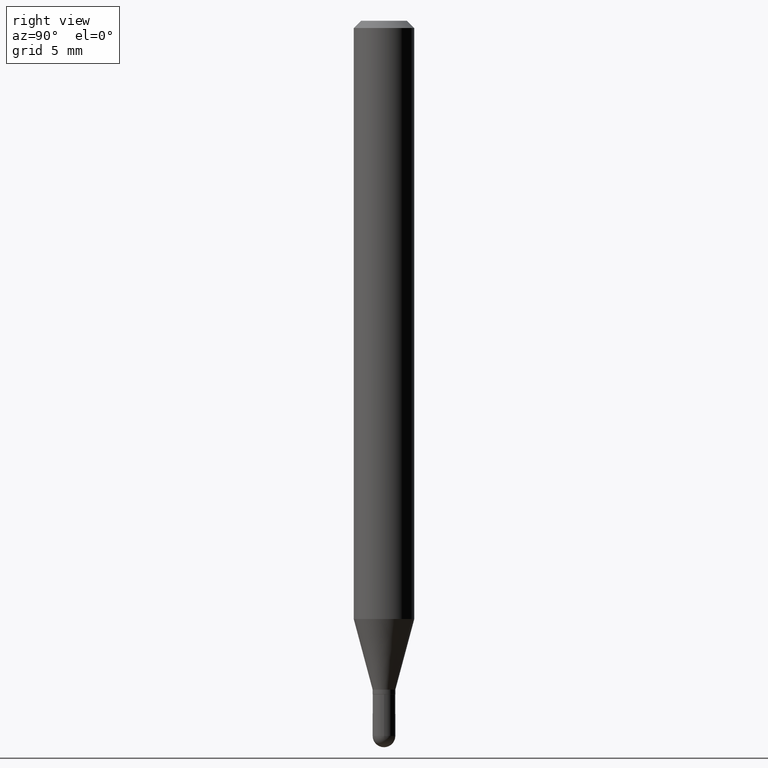
[diagram: clean part render]
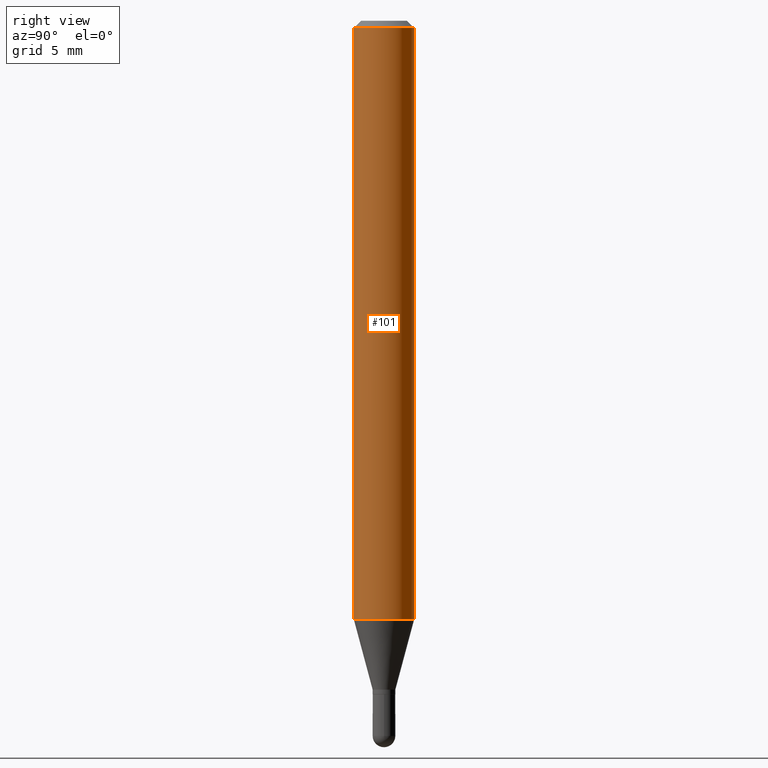
[diagram: same view with one face highlighted and labeled with its STEP entity id]
A machine part, right view. The second image highlights one B-rep face of the part: STEP entity #101.
In plain terms, the highlighted cylindrical surface (edge-blend (fillet) strip) has radius 1.5875 mm, axis along (-0, 0, 1).
Its self-contained STEP definition (entity closure, byte-faithful):
#17 = VECTOR ( 'NONE', #186, 39.37007874015748143 ) ;
#30 = FACE_OUTER_BOUND ( 'NONE', #74, .T. ) ;
#31 = AXIS2_PLACEMENT_3D ( 'NONE', #369, #332, #102 ) ;
#46 = CARTESIAN_POINT ( 'NONE',  ( 3.668033056519500975E-31, -5.237465676699508819E-17, -0.01500000000000078354 ) ) ;
#49 = ORIENTED_EDGE ( 'NONE', *, *, #159, .F. ) ;
#54 = DIRECTION ( 'NONE',  ( -2.445355371012872805E-29, 3.491643784466156312E-15, 1.000000000000000000 ) ) ;
#74 = EDGE_LOOP ( 'NONE', ( #158, #267, #117, #49 ) ) ;
#97 = VECTOR ( 'NONE', #54, 39.37007874015748143 ) ;
#101 = ADVANCED_FACE ( 'NONE', ( #30 ), #211, .T. ) ;
#102 = DIRECTION ( 'NONE',  ( -6.982962677686265133E-15, -1.000000000000000000, 3.491643784466155918E-15 ) ) ;
#108 = EDGE_CURVE ( 'NONE', #121, #284, #321, .T. ) ;
#117 = ORIENTED_EDGE ( 'NONE', *, *, #300, .F. ) ;
#121 = VERTEX_POINT ( 'NONE', #122 ) ;
#122 = CARTESIAN_POINT ( 'NONE',  ( -4.364351673553615941E-16, -0.06250000000000432987, -1.235263415964436673 ) ) ;
#158 = ORIENTED_EDGE ( 'NONE', *, *, #108, .T. ) ;
#159 = EDGE_CURVE ( 'NONE', #121, #190, #315, .T. ) ;
#164 = CARTESIAN_POINT ( 'NONE',  ( -4.364351673553916694E-16, -0.06250000000000001388, 2.182277365291347942E-16 ) ) ;
#165 = AXIS2_PLACEMENT_3D ( 'NONE', #46, #402, #242 ) ;
#186 = DIRECTION ( 'NONE',  ( -2.445355371012872805E-29, 3.491643784466156312E-15, 1.000000000000000000 ) ) ;
#188 = CARTESIAN_POINT ( 'NONE',  ( 4.440892098500626162E-16, 0.06250000000000001388, -2.182277365291347942E-16 ) ) ;
#190 = VERTEX_POINT ( 'NONE', #260 ) ;
#193 = VERTEX_POINT ( 'NONE', #371 ) ;
#211 = CYLINDRICAL_SURFACE ( 'NONE', #31, 0.06250000000000001388 ) ;
#227 = DIRECTION ( 'NONE',  ( -6.982962677686265922E-15, -1.000000000000000000, 4.370956789862821150E-15 ) ) ;
#231 = CARTESIAN_POINT ( 'NONE',  ( 4.440892098500924943E-16, 0.06249999999999566319, -1.235263415964437339 ) ) ;
#242 = DIRECTION ( 'NONE',  ( -6.982962677686265922E-15, -1.000000000000000000, 3.483106191921934765E-15 ) ) ;
#255 = CARTESIAN_POINT ( 'NONE',  ( 3.020658028844344291E-29, -4.313099828530658848E-15, -1.235263415964436895 ) ) ;
#260 = CARTESIAN_POINT ( 'NONE',  ( -4.364351673553913736E-16, -0.06250000000000006939, -0.01500000000000056496 ) ) ;
#267 = ORIENTED_EDGE ( 'NONE', *, *, #364, .T. ) ;
#284 = VERTEX_POINT ( 'NONE', #231 ) ;
#292 = DIRECTION ( 'NONE',  ( -2.445355371012872805E-29, 3.491643784466156312E-15, 1.000000000000000000 ) ) ;
#300 = EDGE_CURVE ( 'NONE', #190, #193, #378, .T. ) ;
#304 = LINE ( 'NONE', #188, #17 ) ;
#313 = AXIS2_PLACEMENT_3D ( 'NONE', #255, #292, #227 ) ;
#315 = LINE ( 'NONE', #164, #97 ) ;
#321 = CIRCLE ( 'NONE', #313, 0.06250000000000000000 ) ;
#332 = DIRECTION ( 'NONE',  ( -2.445355371012872805E-29, 3.491643784466156312E-15, 1.000000000000000000 ) ) ;
#364 = EDGE_CURVE ( 'NONE', #284, #193, #304, .T. ) ;
#369 = CARTESIAN_POINT ( 'NONE',  ( 0.000000000000000000, 0.000000000000000000, 0.000000000000000000 ) ) ;
#371 = CARTESIAN_POINT ( 'NONE',  ( 4.440892098500930859E-16, 0.06249999999999996531, -0.01500000000000100038 ) ) ;
#378 = CIRCLE ( 'NONE', #165, 0.06250000000000001388 ) ;
#402 = DIRECTION ( 'NONE',  ( -2.445355371012872805E-29, 3.491643784466156312E-15, 1.000000000000000000 ) ) ;